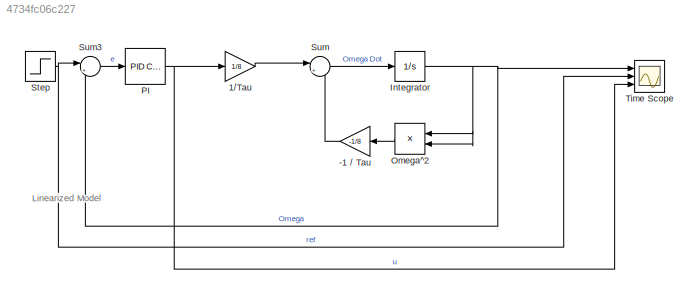
MODEL slx_4734fc06c227
KIND model
CONFIG AbsTol = auto
CONFIG EnableMultiTasking = off
CONFIG FixedStep = auto
CONFIG MaxStep = auto
CONFIG MinStep = auto
CONFIG RelTol = 1e-3
CONFIG SampleTimeConstraint = Unconstrained
CONFIG Solver = VariableStepAuto
CONFIG SolverName = VariableStepAuto
CONFIG StartTime = 0.0
CONFIG StopTime = 10.0
BLOCK [Gain] -1 // Tau
  Gain = -1/8
BLOCK [Gain] 1//Tau
  Gain = 1/8
BLOCK [Integrator] Integrator
  Ports = [1, 1]
BLOCK [Product] Omega^2
  NameLocation = top
  Ports = [2, 1]
BLOCK [Reference] PI  REF=simulink/Continuous/PID Controller
  Ports = [1, 1]
  SourceBlock = simulink/Continuous/PID Controller
  SourceProductBaseCode = SL
  SourceType = PID 1dof
BLOCK [Step] Step
  SampleTime = 0
BLOCK [Sum] Sum
  Inputs = |++
  Ports = [2, 1]
BLOCK [Sum] Sum3
  Inputs = |+-
  Ports = [2, 1]
BLOCK [Scope] Time Scope
  DefaultConfigurationName = spbscopes.TimeScopeBlockCfg
  Floating = off
  NumInputPorts = 3
  Ports = [3]
  ScopeSpecificationString = spbscopes.TimeScopeBlockCfg('CurrentConfiguration', extmgr.ConfigurationSet(extmgr.Configuration('Core','General UI',true),extmgr.Configuration('Core','Source UI',true),extmgr.Configuration('Sources','WiredSimulink',true),extmgr.Configuration('Visuals','Time Domain',true,'DisplayPropertyDefaults',struct('MinYLimReal','-0.125','MaxYLimReal','1.125','YLabelReal','Amplitude','MinYLimMag','0.00000','M...<+1347ch>
  UserDataPersistent = on
ANNOTATION (root): Linearized Model
LINE -1 // Tau:1 -> Sum:2
LINE 1//Tau:1 -> Sum:1
NET Integrator:1 -> Omega^2:1, Omega^2:2, Sum3:2, Time Scope:1
LINE Omega^2:1 -> -1 // Tau:1
NET PI:1 -> 1//Tau:1, Time Scope:3
NET Step:1 -> Sum3:1, Time Scope:2
LINE Sum3:1 -> PI:1
LINE Sum:1 -> Integrator:1
note: NET lines group one-source signal fan-out (src -> all destinations, sorted); 1:1 wires keep LINE
